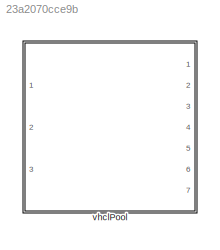
MODEL slx_23a2070cce9b
KIND library
CONFIG AbsTol = auto
CONFIG EnableMultiTasking = off
CONFIG FixedStep = auto
CONFIG MaxStep = auto
CONFIG MinStep = auto
CONFIG RelTol = 1e-3
CONFIG SampleTimeConstraint = Unconstrained
CONFIG SolverName = VariableStepAuto
CONFIG StartTime = 0.0
CONFIG StopTime = 10.0
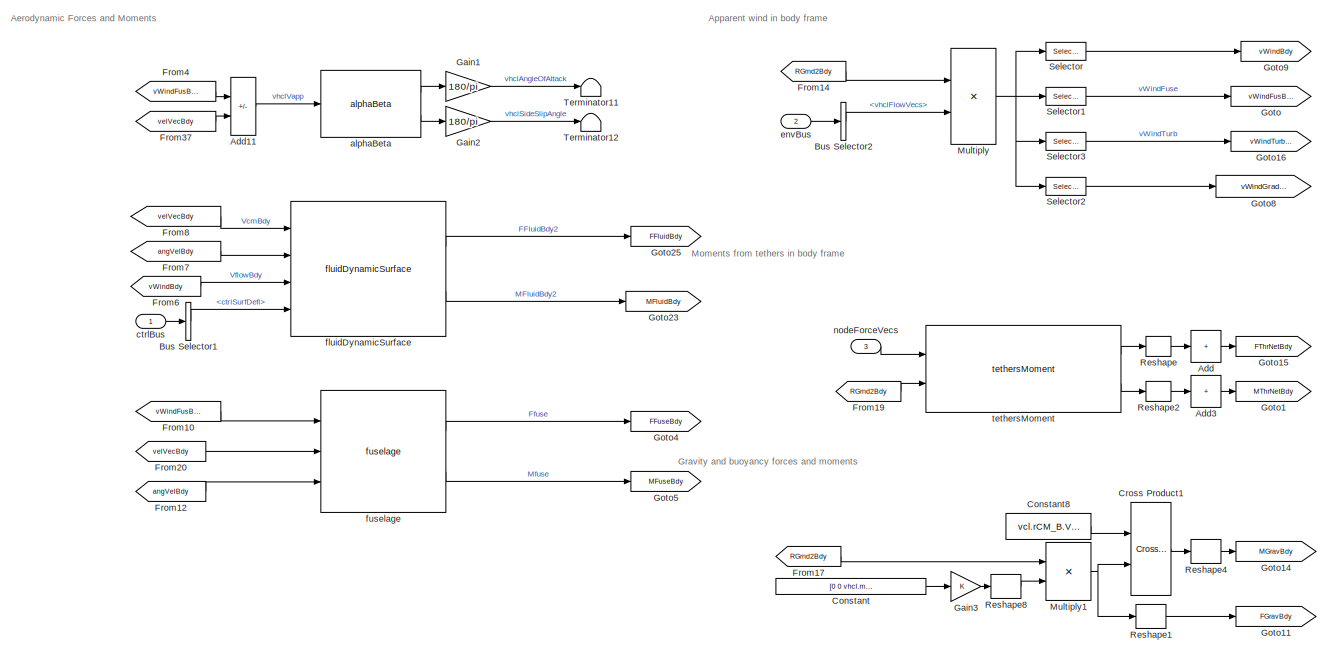
[diagram: vhclPool - part 1/2, full width, top band]
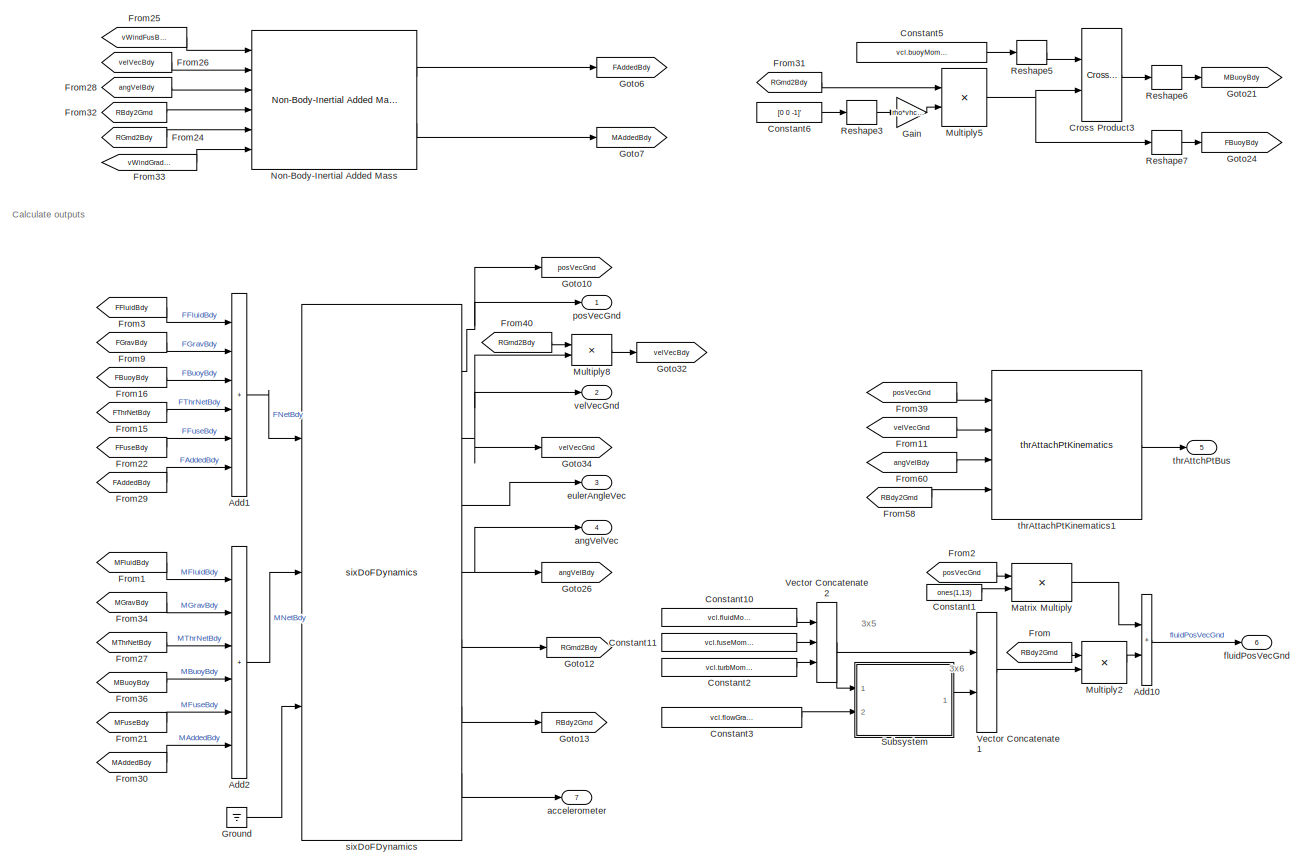
[diagram: vhclPool - part 2/2, full width, bottom band]
BLOCK [SubSystem] vhclPool
  Ports = [3, 7]
  RequestExecContextInheritance = off
  VariantControl = strcmpi(VEHICLE,'vehicleManta2Rot')
BLOCK [Sum] vhclPool/Add
  CollapseDim = 2
  CollapseMode = Specified dimension
  IconShape = rectangular
  Inputs = +
  Ports = [1, 1]
BLOCK [Sum] vhclPool/Add1
  IconShape = rectangular
  Inputs = ++++++
  Ports = [6, 1]
BLOCK [Sum] vhclPool/Add10
  IconShape = rectangular
  Ports = [2, 1]
BLOCK [Sum] vhclPool/Add11
  IconShape = rectangular
  Inputs = +-
  Ports = [2, 1]
BLOCK [Sum] vhclPool/Add2
  IconShape = rectangular
  Inputs = ++++++
  Ports = [6, 1]
BLOCK [Sum] vhclPool/Add3
  CollapseDim = 2
  CollapseMode = Specified dimension
  IconShape = rectangular
  Inputs = +
  Ports = [1, 1]
BLOCK [BusSelector] vhclPool/Bus Selector1
  OutputSignals = ctrlSurfDefl
  Ports = [1, 1]
BLOCK [BusSelector] vhclPool/Bus Selector2
  OutputSignals = vhclFlowVecs
  Ports = [1, 1]
BLOCK [Constant] vhclPool/Constant
  Value = [0 0 vhcl.mass.Value*grav]
BLOCK [Constant] vhclPool/Constant1
  Value = ones(1,13)
  VectorParams1D = off
BLOCK [Constant] vhclPool/Constant10
  Value = vcl.fluidMomentArms.Value
BLOCK [Constant] vhclPool/Constant11
  Value = vcl.fuseMomentArm.Value
BLOCK [Constant] vhclPool/Constant2
  Value = vcl.turbMomentArms.Value
BLOCK [Constant] vhclPool/Constant3
  Value = vcl.flowGradientDist.Value
BLOCK [Constant] vhclPool/Constant5
  Value = vcl.buoyMomentArm.Value
BLOCK [Constant] vhclPool/Constant6
  Value = [0 0 -1]'
BLOCK [Constant] vhclPool/Constant8
  Value = vcl.rCM_B.Value
BLOCK [Reference] vhclPool/Cross Product1  REF=vrlib/Utilities/Cross Product
  Ports = [2, 1]
  SourceBlock = vrlib/Utilities/Cross Product
  SourceProductBaseCode = SL
  SourceType = Cross Product
BLOCK [Reference] vhclPool/Cross Product3  REF=vrlib/Utilities/Cross Product
  Ports = [2, 1]
  SourceBlock = vrlib/Utilities/Cross Product
  SourceProductBaseCode = SL
  SourceType = Cross Product
BLOCK [From] vhclPool/From
  GotoTag = RBdy2Grnd
BLOCK [From] vhclPool/From1
  GotoTag = MFluidBdy
BLOCK [From] vhclPool/From10
  GotoTag = vWindFusBdy
BLOCK [From] vhclPool/From11
  GotoTag = velVecGnd
BLOCK [From] vhclPool/From12
  GotoTag = angVelBdy
BLOCK [From] vhclPool/From14
  GotoTag = RGrnd2Bdy
BLOCK [From] vhclPool/From15
  GotoTag = FThrNetBdy
BLOCK [From] vhclPool/From16
  GotoTag = FBuoyBdy
BLOCK [From] vhclPool/From17
  GotoTag = RGrnd2Bdy
BLOCK [From] vhclPool/From19
  GotoTag = RGrnd2Bdy
BLOCK [From] vhclPool/From2
  GotoTag = posVecGnd
BLOCK [From] vhclPool/From20
  GotoTag = velVecBdy
BLOCK [From] vhclPool/From21
  GotoTag = MFuseBdy
BLOCK [From] vhclPool/From22
  GotoTag = FFuseBdy
BLOCK [From] vhclPool/From24
  GotoTag = RGrnd2Bdy
BLOCK [From] vhclPool/From25
  GotoTag = vWindFusBdy
BLOCK [From] vhclPool/From26
  GotoTag = velVecBdy
BLOCK [From] vhclPool/From27
  GotoTag = MThrNetBdy
BLOCK [From] vhclPool/From28
  GotoTag = angVelBdy
BLOCK [From] vhclPool/From29
  GotoTag = FAddedBdy
BLOCK [From] vhclPool/From3
  GotoTag = FFluidBdy
BLOCK [From] vhclPool/From30
  GotoTag = MAddedBdy
BLOCK [From] vhclPool/From31
  GotoTag = RGrnd2Bdy
BLOCK [From] vhclPool/From32
  GotoTag = RBdy2Grnd
BLOCK [From] vhclPool/From33
  GotoTag = vWindGradGrnd
BLOCK [From] vhclPool/From34
  GotoTag = MGravBdy
BLOCK [From] vhclPool/From36
  GotoTag = MBuoyBdy
BLOCK [From] vhclPool/From37
  GotoTag = velVecBdy
BLOCK [From] vhclPool/From39
  GotoTag = posVecGnd
BLOCK [From] vhclPool/From4
  GotoTag = vWindFusBdy
BLOCK [From] vhclPool/From40
  GotoTag = RGrnd2Bdy
BLOCK [From] vhclPool/From58
  GotoTag = RBdy2Grnd
BLOCK [From] vhclPool/From6
  GotoTag = vWindBdy
BLOCK [From] vhclPool/From60
  GotoTag = angVelBdy
BLOCK [From] vhclPool/From7
  GotoTag = angVelBdy
BLOCK [From] vhclPool/From8
  GotoTag = velVecBdy
BLOCK [From] vhclPool/From9
  GotoTag = FGravBdy
BLOCK [Gain] vhclPool/Gain
  Gain = rho*vhcl.volume.Value*grav
BLOCK [Gain] vhclPool/Gain1
  Gain = 180/pi
BLOCK [Gain] vhclPool/Gain2
  Gain = 180/pi
BLOCK [Gain] vhclPool/Gain3
BLOCK [Goto] vhclPool/Goto
  GotoTag = vWindFusBdy
BLOCK [Goto] vhclPool/Goto1
  GotoTag = MThrNetBdy
BLOCK [Goto] vhclPool/Goto10
  GotoTag = posVecGnd
BLOCK [Goto] vhclPool/Goto11
  GotoTag = FGravBdy
BLOCK [Goto] vhclPool/Goto12
  GotoTag = RGrnd2Bdy
BLOCK [Goto] vhclPool/Goto13
  GotoTag = RBdy2Grnd
BLOCK [Goto] vhclPool/Goto14
  GotoTag = MGravBdy
BLOCK [Goto] vhclPool/Goto15
  GotoTag = FThrNetBdy
BLOCK [Goto] vhclPool/Goto16
  GotoTag = vWindTurbBdy
BLOCK [Goto] vhclPool/Goto21
  GotoTag = MBuoyBdy
BLOCK [Goto] vhclPool/Goto23
  GotoTag = MFluidBdy
BLOCK [Goto] vhclPool/Goto24
  GotoTag = FBuoyBdy
BLOCK [Goto] vhclPool/Goto25
  GotoTag = FFluidBdy
BLOCK [Goto] vhclPool/Goto26
  GotoTag = angVelBdy
BLOCK [Goto] vhclPool/Goto32
  GotoTag = velVecBdy
BLOCK [Goto] vhclPool/Goto34
  GotoTag = velVecGnd
BLOCK [Goto] vhclPool/Goto4
  GotoTag = FFuseBdy
BLOCK [Goto] vhclPool/Goto5
  GotoTag = MFuseBdy
BLOCK [Goto] vhclPool/Goto6
  GotoTag = FAddedBdy
BLOCK [Goto] vhclPool/Goto7
  GotoTag = MAddedBdy
BLOCK [Goto] vhclPool/Goto8
  GotoTag = vWindGradGrnd
BLOCK [Goto] vhclPool/Goto9
  GotoTag = vWindBdy
BLOCK [Ground] vhclPool/Ground
BLOCK [Product] vhclPool/Matrix Multiply
  Multiplication = Matrix(*)
  Ports = [2, 1]
BLOCK [Product] vhclPool/Multiply
  Multiplication = Matrix(*)
  Ports = [2, 1]
BLOCK [Product] vhclPool/Multiply1
  Multiplication = Matrix(*)
  Ports = [2, 1]
BLOCK [Product] vhclPool/Multiply2
  Multiplication = Matrix(*)
  Ports = [2, 1]
BLOCK [Product] vhclPool/Multiply5
  Multiplication = Matrix(*)
  Ports = [2, 1]
BLOCK [Product] vhclPool/Multiply8
  Multiplication = Matrix(*)
  Ports = [2, 1]
BLOCK [Reference] vhclPool/Non-Body-Inertial Added Mass  REF=addedMass_cl/Non-Body-Inertial Added Mass
  Ports = [6, 2]
  SourceBlock = addedMass_cl/Non-Body-Inertial Added Mass
BLOCK [Reshape] vhclPool/Reshape
  OutputDimensionality = Customize
  OutputDimensions = [3 vcl.numTethers.Value]
  Ports = [1, 1]
BLOCK [Reshape] vhclPool/Reshape1
  OutputDimensionality = Column vector (2-D)
  Ports = [1, 1]
BLOCK [Reshape] vhclPool/Reshape2
  OutputDimensionality = Customize
  OutputDimensions = [3 vcl.numTethers.Value]
  Ports = [1, 1]
BLOCK [Reshape] vhclPool/Reshape3
  OutputDimensionality = Column vector (2-D)
  Ports = [1, 1]
BLOCK [Reshape] vhclPool/Reshape4
  OutputDimensionality = Column vector (2-D)
  Ports = [1, 1]
BLOCK [Reshape] vhclPool/Reshape5
  OutputDimensionality = Column vector (2-D)
  Ports = [1, 1]
BLOCK [Reshape] vhclPool/Reshape6
  OutputDimensionality = Column vector (2-D)
  Ports = [1, 1]
BLOCK [Reshape] vhclPool/Reshape7
  OutputDimensionality = Column vector (2-D)
  Ports = [1, 1]
BLOCK [Reshape] vhclPool/Reshape8
  OutputDimensionality = Column vector (2-D)
  Ports = [1, 1]
BLOCK [Selector] vhclPool/Selector
  IndexOptions = Select all,Index vector (dialog)
  Indices = [1 3],1:4
  InputPortWidth = 3
  NumberOfDimensions = 2
  OutputSizes = 1,1
  Ports = [1, 1]
BLOCK [Selector] vhclPool/Selector1
  IndexOptions = Select all,Index vector (dialog)
  Indices = [1 3],5
  InputPortWidth = 3
  NumberOfDimensions = 2
  OutputSizes = 1,1
  Ports = [1, 1]
BLOCK [Selector] vhclPool/Selector2
  IndexOptions = Select all,Index vector (dialog)
  Indices = [1 3],8:13
  InputPortWidth = 3
  NumberOfDimensions = 2
  OutputSizes = 1,1
  Ports = [1, 1]
BLOCK [Selector] vhclPool/Selector3
  IndexOptions = Select all,Index vector (dialog)
  Indices = [1 3],6:7
  InputPortWidth = 3
  NumberOfDimensions = 2
  OutputSizes = 1,1
  Ports = [1, 1]
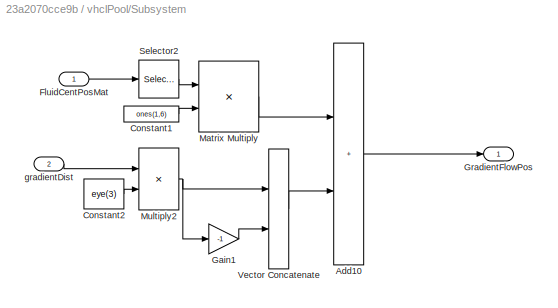
BLOCK [SubSystem] vhclPool/Subsystem
  Ports = [2, 1]
  RequestExecContextInheritance = off
BLOCK [Sum] vhclPool/Subsystem/Add10
  IconShape = rectangular
  Ports = [2, 1]
BLOCK [Constant] vhclPool/Subsystem/Constant1
  Value = ones(1,6)
  VectorParams1D = off
BLOCK [Constant] vhclPool/Subsystem/Constant2
  Value = eye(3)
BLOCK [Inport] vhclPool/Subsystem/FluidCentPosMat
BLOCK [Gain] vhclPool/Subsystem/Gain1
  Gain = -1
BLOCK [Outport] vhclPool/Subsystem/GradientFlowPos
  VectorParamsAs1DForOutWhenUnconnected = off
BLOCK [Product] vhclPool/Subsystem/Matrix Multiply
  Multiplication = Matrix(*)
  Ports = [2, 1]
BLOCK [Product] vhclPool/Subsystem/Multiply2
  Ports = [2, 1]
BLOCK [Selector] vhclPool/Subsystem/Selector2
  IndexOptions = Select all,Index vector (dialog)
  Indices = [1 3],5
  InputPortWidth = 3
  NumberOfDimensions = 2
  OutputSizes = 1,1
  Ports = [1, 1]
BLOCK [Concatenate] vhclPool/Subsystem/Vector Concatenate
  ConcatenateDimension = 2
  Mode = Multidimensional array
  Ports = [2, 1]
BLOCK [Inport] vhclPool/Subsystem/gradientDist
  Port = 2
BLOCK [Terminator] vhclPool/Terminator11
BLOCK [Terminator] vhclPool/Terminator12
BLOCK [Concatenate] vhclPool/Vector Concatenate1
  ConcatenateDimension = 2
  Mode = Multidimensional array
  Ports = [2, 1]
BLOCK [Concatenate] vhclPool/Vector Concatenate2
  ConcatenateDimension = 2
  Mode = Multidimensional array
  NumInputs = 3
  Ports = [3, 1]
BLOCK [Outport] vhclPool/accelerometer
  Port = 7
  VectorParamsAs1DForOutWhenUnconnected = off
BLOCK [Reference] vhclPool/alphaBeta  REF=alphaBeta_ul/alphaBeta
  Ports = [1, 2]
  SourceBlock = alphaBeta_ul/alphaBeta
  SourceType = SubSystem
BLOCK [Outport] vhclPool/angVelVec
  Port = 4
  VectorParamsAs1DForOutWhenUnconnected = off
BLOCK [Inport] vhclPool/ctrlBus
  OutDataTypeStr = Bus: fltCtrlBus
BLOCK [Inport] vhclPool/envBus
  OutDataTypeStr = Bus: envBus
  Port = 2
BLOCK [Outport] vhclPool/eulerAngleVec
  Port = 3
  VectorParamsAs1DForOutWhenUnconnected = off
BLOCK [Reference] vhclPool/fluidDynamicSurface  REF=fluidDynamicSurfacePool_cl/fluidDynamicSurface
  Ports = [4, 2]
  SourceBlock = fluidDynamicSurfacePool_cl/fluidDynamicSurface
BLOCK [Outport] vhclPool/fluidPosVecGnd
  Port = 6
  VectorParamsAs1DForOutWhenUnconnected = off
BLOCK [Reference] vhclPool/fuselage  REF=fuselagePool_cl/fuselage
  Ports = [3, 2]
  SourceBlock = fuselagePool_cl/fuselage
BLOCK [Inport] vhclPool/nodeForceVecs
  Port = 3
BLOCK [Outport] vhclPool/posVecGnd
  VectorParamsAs1DForOutWhenUnconnected = off
BLOCK [Reference] vhclPool/sixDoFDynamics  REF=sixDoFDynamics_cl/sixDoFDynamics
  Ports = [3, 7]
  SourceBlock = sixDoFDynamics_cl/sixDoFDynamics
BLOCK [Reference] vhclPool/tethersMoment  REF=tethersMoment_cl/tethersMoment
  Ports = [2, 2]
  SourceBlock = tethersMoment_cl/tethersMoment
BLOCK [Reference] vhclPool/thrAttachPtKinematics1  REF=thrAttachPtKinematics_ul/thrAttachPtKinematics
  Ports = [4, 1]
  SourceBlock = thrAttachPtKinematics_ul/thrAttachPtKinematics
BLOCK [Outport] vhclPool/thrAttchPtBus
  Port = 5
  VectorParamsAs1DForOutWhenUnconnected = off
BLOCK [Outport] vhclPool/velVecGnd
  Port = 2
  VectorParamsAs1DForOutWhenUnconnected = off
ANNOTATION vhclPool: 3x5
ANNOTATION vhclPool: 3x6
ANNOTATION vhclPool: Aerodynamic Forces and Moments
ANNOTATION vhclPool: Apparent wind in body frame
ANNOTATION vhclPool: Calculate outputs
ANNOTATION vhclPool: Gravity and buoyancy forces and moments
ANNOTATION vhclPool: Moments from tethers in body frame
LINE vhclPool/Add10:1 -> vhclPool/fluidPosVecGnd:1
LINE vhclPool/Add11:1 -> vhclPool/alphaBeta:1
LINE vhclPool/Add1:1 -> vhclPool/sixDoFDynamics:1
LINE vhclPool/Add2:1 -> vhclPool/sixDoFDynamics:2
LINE vhclPool/Add3:1 -> vhclPool/Goto1:1
LINE vhclPool/Add:1 -> vhclPool/Goto15:1
LINE vhclPool/Bus Selector1:1 -> vhclPool/fluidDynamicSurface:4
LINE vhclPool/Bus Selector2:1 -> vhclPool/Multiply:2
LINE vhclPool/Constant10:1 -> vhclPool/Vector Concatenate2:1
LINE vhclPool/Constant11:1 -> vhclPool/Vector Concatenate2:2
LINE vhclPool/Constant1:1 -> vhclPool/Matrix Multiply:2
LINE vhclPool/Constant2:1 -> vhclPool/Vector Concatenate2:3
LINE vhclPool/Constant3:1 -> vhclPool/Subsystem:2
LINE vhclPool/Constant5:1 -> vhclPool/Reshape5:1
LINE vhclPool/Constant6:1 -> vhclPool/Reshape3:1
LINE vhclPool/Constant8:1 -> vhclPool/Cross Product1:1
LINE vhclPool/Constant:1 -> vhclPool/Gain3:1
LINE vhclPool/Cross Product1:1 -> vhclPool/Reshape4:1
LINE vhclPool/Cross Product3:1 -> vhclPool/Reshape6:1
LINE vhclPool/From10:1 -> vhclPool/fuselage:1
LINE vhclPool/From11:1 -> vhclPool/thrAttachPtKinematics1:2
LINE vhclPool/From12:1 -> vhclPool/fuselage:3
LINE vhclPool/From14:1 -> vhclPool/Multiply:1
LINE vhclPool/From15:1 -> vhclPool/Add1:4
LINE vhclPool/From16:1 -> vhclPool/Add1:3
LINE vhclPool/From17:1 -> vhclPool/Multiply1:1
LINE vhclPool/From19:1 -> vhclPool/tethersMoment:2
LINE vhclPool/From1:1 -> vhclPool/Add2:1
LINE vhclPool/From20:1 -> vhclPool/fuselage:2
LINE vhclPool/From21:1 -> vhclPool/Add2:5
LINE vhclPool/From22:1 -> vhclPool/Add1:5
LINE vhclPool/From24:1 -> vhclPool/Non-Body-Inertial Added Mass:5
LINE vhclPool/From25:1 -> vhclPool/Non-Body-Inertial Added Mass:1
LINE vhclPool/From26:1 -> vhclPool/Non-Body-Inertial Added Mass:2
LINE vhclPool/From27:1 -> vhclPool/Add2:3
LINE vhclPool/From28:1 -> vhclPool/Non-Body-Inertial Added Mass:3
LINE vhclPool/From29:1 -> vhclPool/Add1:6
LINE vhclPool/From2:1 -> vhclPool/Matrix Multiply:1
LINE vhclPool/From30:1 -> vhclPool/Add2:6
LINE vhclPool/From31:1 -> vhclPool/Multiply5:1
LINE vhclPool/From32:1 -> vhclPool/Non-Body-Inertial Added Mass:4
LINE vhclPool/From33:1 -> vhclPool/Non-Body-Inertial Added Mass:6
LINE vhclPool/From34:1 -> vhclPool/Add2:2
LINE vhclPool/From36:1 -> vhclPool/Add2:4
LINE vhclPool/From37:1 -> vhclPool/Add11:2
LINE vhclPool/From39:1 -> vhclPool/thrAttachPtKinematics1:1
LINE vhclPool/From3:1 -> vhclPool/Add1:1
LINE vhclPool/From40:1 -> vhclPool/Multiply8:1
LINE vhclPool/From4:1 -> vhclPool/Add11:1
LINE vhclPool/From58:1 -> vhclPool/thrAttachPtKinematics1:4
LINE vhclPool/From60:1 -> vhclPool/thrAttachPtKinematics1:3
LINE vhclPool/From6:1 -> vhclPool/fluidDynamicSurface:3
LINE vhclPool/From7:1 -> vhclPool/fluidDynamicSurface:2
LINE vhclPool/From8:1 -> vhclPool/fluidDynamicSurface:1
LINE vhclPool/From9:1 -> vhclPool/Add1:2
LINE vhclPool/From:1 -> vhclPool/Multiply2:1
LINE vhclPool/Gain1:1 -> vhclPool/Terminator11:1
LINE vhclPool/Gain2:1 -> vhclPool/Terminator12:1
LINE vhclPool/Gain3:1 -> vhclPool/Reshape8:1
LINE vhclPool/Gain:1 -> vhclPool/Multiply5:2
LINE vhclPool/Ground:1 -> vhclPool/sixDoFDynamics:3
LINE vhclPool/Matrix Multiply:1 -> vhclPool/Add10:1
NET vhclPool/Multiply1:1 -> vhclPool/Cross Product1:2, vhclPool/Reshape1:1
LINE vhclPool/Multiply2:1 -> vhclPool/Add10:2
NET vhclPool/Multiply5:1 -> vhclPool/Cross Product3:2, vhclPool/Reshape7:1
LINE vhclPool/Multiply8:1 -> vhclPool/Goto32:1
NET vhclPool/Multiply:1 -> vhclPool/Selector1:1, vhclPool/Selector2:1, vhclPool/Selector3:1, vhclPool/Selector:1
LINE vhclPool/Non-Body-Inertial Added Mass:1 -> vhclPool/Goto6:1
LINE vhclPool/Non-Body-Inertial Added Mass:2 -> vhclPool/Goto7:1
LINE vhclPool/Reshape1:1 -> vhclPool/Goto11:1
LINE vhclPool/Reshape2:1 -> vhclPool/Add3:1
LINE vhclPool/Reshape3:1 -> vhclPool/Gain:1
LINE vhclPool/Reshape4:1 -> vhclPool/Goto14:1
LINE vhclPool/Reshape5:1 -> vhclPool/Cross Product3:1
LINE vhclPool/Reshape6:1 -> vhclPool/Goto21:1
LINE vhclPool/Reshape7:1 -> vhclPool/Goto24:1
LINE vhclPool/Reshape8:1 -> vhclPool/Multiply1:2
LINE vhclPool/Reshape:1 -> vhclPool/Add:1
LINE vhclPool/Selector1:1 -> vhclPool/Goto:1
LINE vhclPool/Selector2:1 -> vhclPool/Goto8:1
LINE vhclPool/Selector3:1 -> vhclPool/Goto16:1
LINE vhclPool/Selector:1 -> vhclPool/Goto9:1
LINE vhclPool/Subsystem/Add10:1 -> vhclPool/Subsystem/GradientFlowPos:1
LINE vhclPool/Subsystem/Constant1:1 -> vhclPool/Subsystem/Matrix Multiply:2
LINE vhclPool/Subsystem/Constant2:1 -> vhclPool/Subsystem/Multiply2:2
LINE vhclPool/Subsystem/FluidCentPosMat:1 -> vhclPool/Subsystem/Selector2:1
LINE vhclPool/Subsystem/Gain1:1 -> vhclPool/Subsystem/Vector Concatenate:2
LINE vhclPool/Subsystem/Matrix Multiply:1 -> vhclPool/Subsystem/Add10:1
NET vhclPool/Subsystem/Multiply2:1 -> vhclPool/Subsystem/Gain1:1, vhclPool/Subsystem/Vector Concatenate:1
LINE vhclPool/Subsystem/Selector2:1 -> vhclPool/Subsystem/Matrix Multiply:1
LINE vhclPool/Subsystem/Vector Concatenate:1 -> vhclPool/Subsystem/Add10:2
LINE vhclPool/Subsystem/gradientDist:1 -> vhclPool/Subsystem/Multiply2:1
LINE vhclPool/Subsystem:1 -> vhclPool/Vector Concatenate1:2
LINE vhclPool/Vector Concatenate1:1 -> vhclPool/Multiply2:2
NET vhclPool/Vector Concatenate2:1 -> vhclPool/Subsystem:1, vhclPool/Vector Concatenate1:1
LINE vhclPool/alphaBeta:1 -> vhclPool/Gain1:1
LINE vhclPool/alphaBeta:2 -> vhclPool/Gain2:1
LINE vhclPool/ctrlBus:1 -> vhclPool/Bus Selector1:1
LINE vhclPool/envBus:1 -> vhclPool/Bus Selector2:1
LINE vhclPool/fluidDynamicSurface:1 -> vhclPool/Goto25:1
LINE vhclPool/fluidDynamicSurface:2 -> vhclPool/Goto23:1
LINE vhclPool/fuselage:1 -> vhclPool/Goto4:1
LINE vhclPool/fuselage:2 -> vhclPool/Goto5:1
LINE vhclPool/nodeForceVecs:1 -> vhclPool/tethersMoment:1
NET vhclPool/sixDoFDynamics:1 -> vhclPool/Goto10:1, vhclPool/posVecGnd:1
NET vhclPool/sixDoFDynamics:2 -> vhclPool/Goto34:1, vhclPool/Multiply8:2, vhclPool/velVecGnd:1
LINE vhclPool/sixDoFDynamics:3 -> vhclPool/eulerAngleVec:1
NET vhclPool/sixDoFDynamics:4 -> vhclPool/Goto26:1, vhclPool/angVelVec:1
LINE vhclPool/sixDoFDynamics:5 -> vhclPool/Goto12:1
LINE vhclPool/sixDoFDynamics:6 -> vhclPool/Goto13:1
LINE vhclPool/sixDoFDynamics:7 -> vhclPool/accelerometer:1
LINE vhclPool/tethersMoment:1 -> vhclPool/Reshape:1
LINE vhclPool/tethersMoment:2 -> vhclPool/Reshape2:1
LINE vhclPool/thrAttachPtKinematics1:1 -> vhclPool/thrAttchPtBus:1
note: NET lines group one-source signal fan-out (src -> all destinations, sorted); 1:1 wires keep LINE
